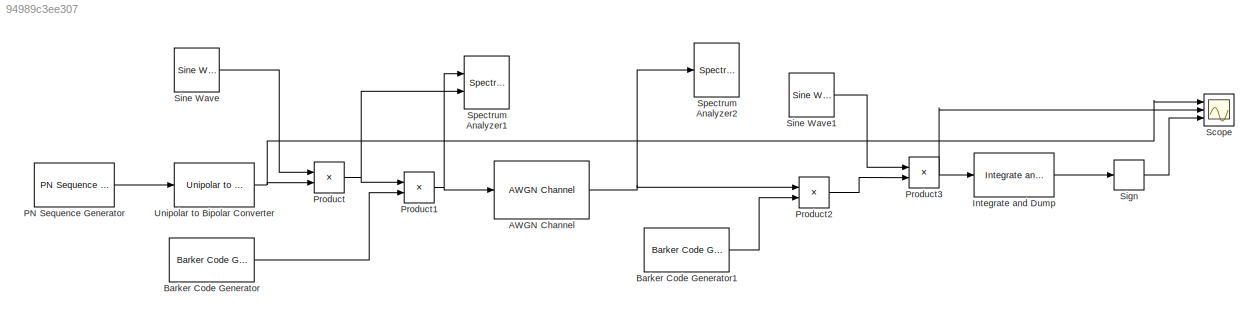
MODEL slx_94989c3ee307
KIND model
CONFIG AbsTol = auto
CONFIG EnableMultiTasking = off
CONFIG FixedStep = auto
CONFIG MaxStep = auto
CONFIG MinStep = auto
CONFIG RelTol = 1e-3
CONFIG SampleTimeConstraint = Unconstrained
CONFIG SolverName = VariableStepDiscrete
CONFIG StartTime = 0.0
CONFIG StopTime = 160e-6
BLOCK [Reference] AWGN Channel  REF=commchan3/AWGN
Channel
  Ports = [1, 1]
  SourceBlock = commchan3/AWGN\nChannel
  SourceProductBaseCode = CM
  SourceType = AWGN Channel
  UserDataPersistent = on
BLOCK [Reference] Barker Code Generator  REF=commseqgen3/Barker Code
Generator
  Ports = [0, 1]
  SourceBlock = commseqgen3/Barker Code\nGenerator
  SourceProductBaseCode = CM
  SourceType = Barker Code Generator
BLOCK [Reference] Barker Code Generator1  REF=commseqgen3/Barker Code
Generator
  Ports = [0, 1]
  SourceBlock = commseqgen3/Barker Code\nGenerator
  SourceProductBaseCode = CM
  SourceType = Barker Code Generator
BLOCK [Reference] Integrate and Dump  REF=commfilt2/Integrate
and Dump
  Ports = [1, 1]
  SourceBlock = commfilt2/Integrate\nand Dump
  SourceProductBaseCode = CM
  SourceType = Integrate and Dump
BLOCK [Reference] PN Sequence Generator  REF=commseqgen3/PN Sequence
Generator
  Ports = [0, 1]
  SourceBlock = commseqgen3/PN Sequence\nGenerator
  SourceProductBaseCode = CM
  SourceType = PN Sequence Generator
BLOCK [Product] Product
  Ports = [2, 1]
  SampleTime = 0.1e-9
BLOCK [Product] Product1
  Ports = [2, 1]
  SampleTime = 0.1e-9
BLOCK [Product] Product2
  Ports = [2, 1]
  SampleTime = 0.1e-9
BLOCK [Product] Product3
  Ports = [2, 1]
  SampleTime = 0.1e-9
BLOCK [Scope] Scope
  Floating = off
  NumInputPorts = 3
  Ports = [3]
  ScopeSpecificationString = Simulink.scopes.TimeScopeBlockCfg('CurrentConfiguration', extmgr.ConfigurationSet(extmgr.Configuration('Core','General UI',true),extmgr.Configuration('Core','Source UI',true),extmgr.Configuration('Sources','WiredSimulink',true),extmgr.Configuration('Visuals','Time Domain',true,'SerializedDisplays',{struct('MinYLimReal','-1.25','MaxYLimReal','1.25','YLabelReal','','MinYLimMag','0.00000','MaxYLimMag...<+2742ch>
BLOCK [Signum] Sign
BLOCK [Reference] Sine Wave  REF=dspsrcs4/Sine Wave
  Ports = [0, 1]
  SourceBlock = dspsrcs4/Sine Wave
  SourceProductBaseCode = DS
  SourceType = Sine Wave
BLOCK [Reference] Sine Wave1  REF=dspsrcs4/Sine Wave
  Ports = [0, 1]
  SourceBlock = dspsrcs4/Sine Wave
  SourceProductBaseCode = DS
  SourceType = Sine Wave
BLOCK [SpectrumAnalyzer] Spectrum Analyzer1
  NumInputPorts = 2
  Ports = [2]
  ScopeSpecificationString = spbscopes.SpectrumAnalyzerBlockCfg('CurrentConfiguration', extmgr.ConfigurationSet(extmgr.Configuration('Core','General UI',true),extmgr.Configuration('Core','Source UI',true),extmgr.Configuration('Sources','WiredSimulink',true),extmgr.Configuration('Visuals','Spectrum',true,'AxesProperties',struct('Color',{[0 0 0],[0 0 0]},'XColor',{[0.686274509803922 0.686274509803922 0.686274509803922],[0.68627...<+2379ch>
BLOCK [SpectrumAnalyzer] Spectrum Analyzer2
  Ports = [1]
  ScopeSpecificationString = spbscopes.SpectrumAnalyzerBlockCfg('CurrentConfiguration', extmgr.ConfigurationSet(extmgr.Configuration('Core','General UI',true),extmgr.Configuration('Core','Source UI',true),extmgr.Configuration('Sources','WiredSimulink',true),extmgr.Configuration('Visuals','Spectrum',true,'AxesProperties',struct('Color',{[0 0 0],[0 0 0]},'XColor',{[0.686274509803922 0.686274509803922 0.686274509803922],[0.68627...<+2196ch>
BLOCK [Reference] Unipolar to Bipolar Converter  REF=commutil2/Unipolar to
Bipolar
Converter
  Ports = [1, 1]
  SourceBlock = commutil2/Unipolar to\nBipolar\nConverter
  SourceProductBaseCode = CM
  SourceType = Unipolar to Bipolar Converter
NET AWGN Channel:1 -> Product2:1, Spectrum Analyzer2:1
LINE Barker Code Generator1:1 -> Product2:2
LINE Barker Code Generator:1 -> Product1:2
LINE Integrate and Dump:1 -> Sign:1
LINE PN Sequence Generator:1 -> Unipolar to Bipolar Converter:1
NET Product1:1 -> AWGN Channel:1, Spectrum Analyzer1:1
LINE Product2:1 -> Product3:2
NET Product3:1 -> Integrate and Dump:1, Scope:2
NET Product:1 -> Product1:1, Spectrum Analyzer1:2
LINE Sign:1 -> Scope:3
LINE Sine Wave1:1 -> Product3:1
LINE Sine Wave:1 -> Product:1
NET Unipolar to Bipolar Converter:1 -> Product:2, Scope:1
note: NET lines group one-source signal fan-out (src -> all destinations, sorted); 1:1 wires keep LINE
